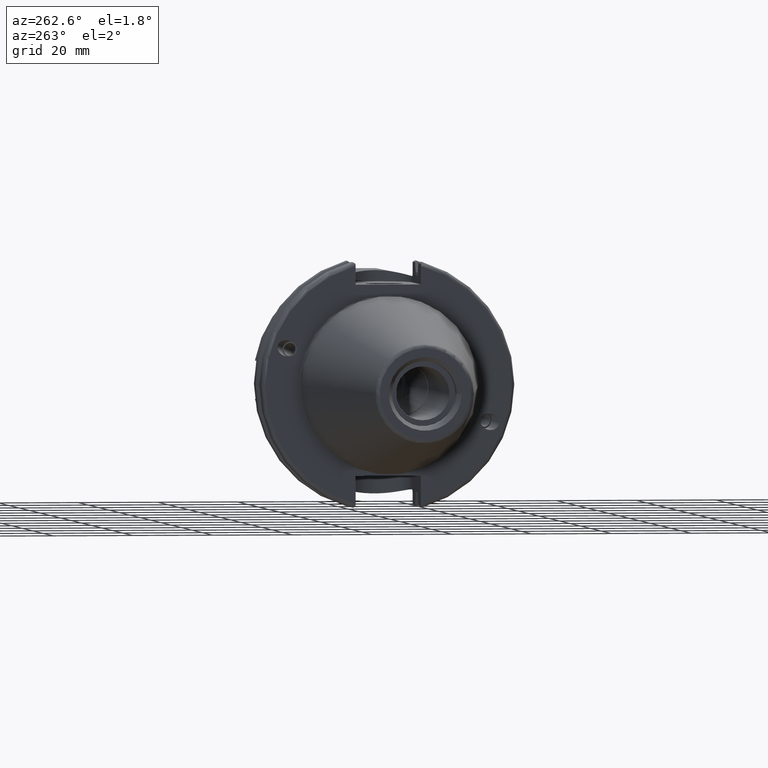
[diagram: clean part render]
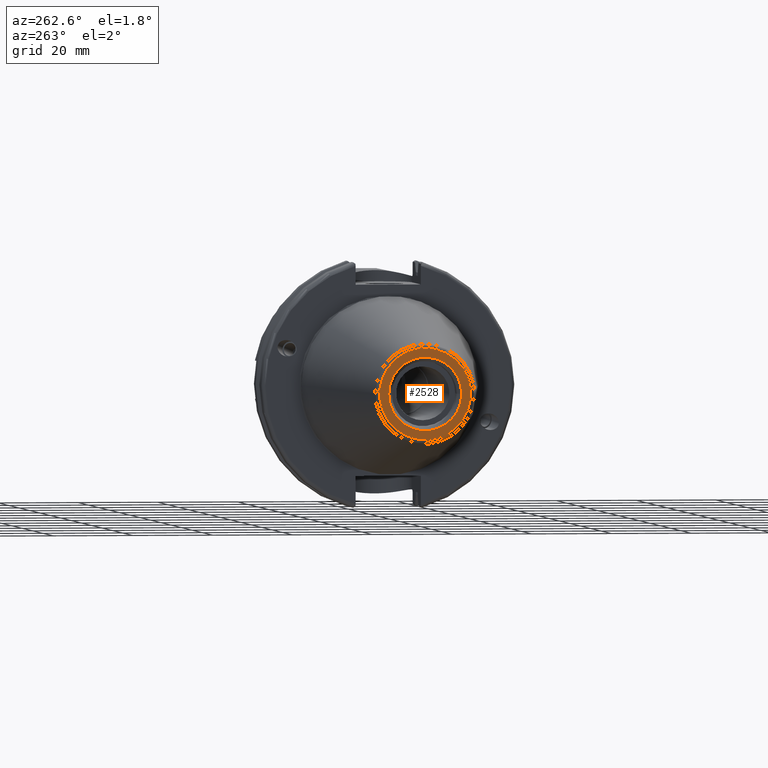
[diagram: same view with one face highlighted and labeled with its STEP entity id]
A machine part, auxiliary view. The second image highlights one B-rep face of the part: STEP entity #2528.
In plain terms, the highlighted planar face has unit normal (-1, 0, 0).
Its self-contained STEP definition (entity closure, byte-faithful):
#185=FACE_BOUND('',#561,.T.);
#270=CIRCLE('',#2871,11.4071305970304);
#271=CIRCLE('',#2873,9.15);
#399=FACE_OUTER_BOUND('',#560,.T.);
#560=EDGE_LOOP('',(#2054));
#561=EDGE_LOOP('',(#2055));
#1180=VERTEX_POINT('',#4675);
#1181=VERTEX_POINT('',#4679);
#1500=EDGE_CURVE('',#1180,#1180,#270,.T.);
#1501=EDGE_CURVE('',#1181,#1181,#271,.T.);
#2054=ORIENTED_EDGE('',*,*,#1500,.F.);
#2055=ORIENTED_EDGE('',*,*,#1501,.T.);
#2411=PLANE('',#2872);
#2528=ADVANCED_FACE('',(#399,#185),#2411,.T.);
#2871=AXIS2_PLACEMENT_3D('',#4677,#3440,#3441);
#2872=AXIS2_PLACEMENT_3D('',#4678,#3442,#3443);
#2873=AXIS2_PLACEMENT_3D('',#4680,#3444,#3445);
#3440=DIRECTION('center_axis',(1.,0.,0.));
#3441=DIRECTION('ref_axis',(0.,-1.,1.83697019872103E-16));
#3442=DIRECTION('center_axis',(-1.,0.,0.));
#3443=DIRECTION('ref_axis',(0.,0.,1.));
#3444=DIRECTION('center_axis',(1.,0.,0.));
#3445=DIRECTION('ref_axis',(0.,0.,-1.));
#4675=CARTESIAN_POINT('',(-68.25,-1.39697059731091E-15,11.4071305970304));
#4677=CARTESIAN_POINT('Origin',(-68.25,0.,0.));
#4678=CARTESIAN_POINT('Origin',(-68.25,12.271875,0.));
#4679=CARTESIAN_POINT('',(-68.25,-9.15,-1.12055182121983E-15));
#4680=CARTESIAN_POINT('Origin',(-68.25,0.,0.));